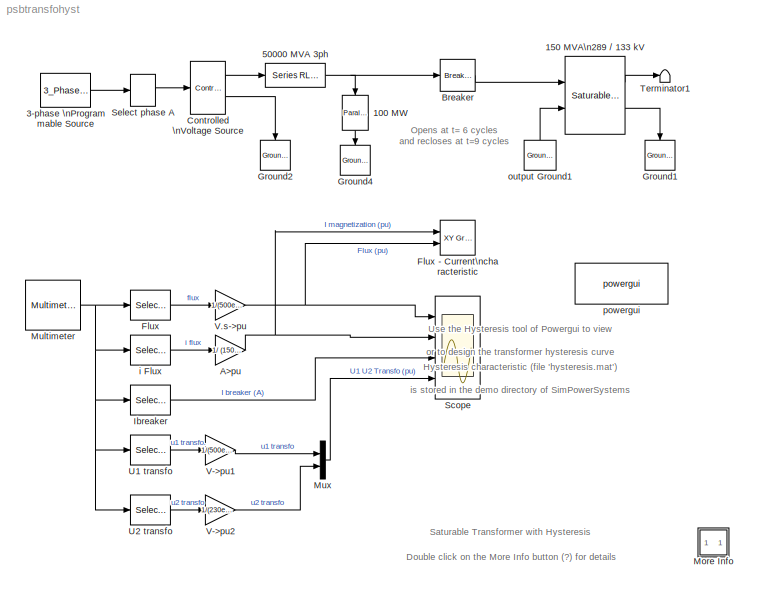
MODEL psbtransfohyst
KIND model
BLOCK [Reference] 100 MW  REF=powerlib2/Elements/Parallel RLC Load
  PSBOutputType = 1
  Ports = [1, 1]
  SourceBlock = powerlib2/Elements/Parallel RLC Load
  SourceType = Parallel RLC Load
  Tag = PoWeRsYsTeMbLoCk
  a = 500e3/sqrt(3)
  b = 60
  c = 100e6
  d = 0
  e = 0
  mesure = None
BLOCK [Reference] 150 MVA\n289 // 133 kV  REF=powerlib2/Elements/Saturable Transformer
  H = on
  Initialslope = +1
  PSBOutputType = 1111
  Ports = [2, 2]
  SourceBlock = powerlib2/Elements/Saturable Transformer
  SourceType = Saturable Transformer
  Tag = PoWeRsYsTeMbLoCk
  a = [ 150e6 60 ]
  b = [ 500e3/sqrt(3) 0.002 0.08 ]
  c = [ 230e3/sqrt(3) 0.002 0.08]
  d = [ 230e3/sqrt(3) 0.002 0.08]
  e = [0 0;  0.0 1.1; 1.0  1.5]
  f = [200 0]
  matfile = 'hysteresis'
  mesure = All measurements (V I Flux)
  w3check = off
BLOCK [Reference] 3-phase \nProgrammable Source  REF=powerlib_modelsV2/Continuous/3_Phase_Prog_Source
  HarmonicGeneration = off
  Par_HarmoA_pu = [3 0.2 -25 0]
  Par_HarmoB_pu = [2 0.15 35 2]
  Par_Timing_Harmo = [0.05  1]
  Par_Timing_Variation = [0.05 1]
  Par_Vps_LLrms = [500e3*0.8 90 60]
  Ports = [0, 1]
  SinglePhase = off
  SourceBlock = powerlib_modelsV2/Continuous/3_Phase_Prog_Source
  SourceType = 3-phase Programmable Source
  VariationEntity = Amplitude
  VariationFreq = 1
  VariationMag = 60
  VariationRate = 2
  VariationStep = 0.3
  VariationType = Step
  Xtime = [0 0.1 0.15 0.2]
  Yampli = [1 0.8 1.2 1.0]
BLOCK [Reference] 50000 MVA 3ph  REF=powerlib2/Elements/Series RLC Branch
  PSBOutputType = 1
  Ports = [1, 1]
  SourceBlock = powerlib2/Elements/Series RLC Branch
  SourceType = Series RLC Branch
  Tag = PoWeRsYsTeMbLoCk
  a = 500e3^2/5000e6/10
  b = 500e3^2/5000e6/(2*pi*60)
  c = inf
  mesure = Branch current
BLOCK [Gain] A>pu
  Gain = 1/ (150e6/(500e3/sqrt(3))*sqrt(2))
BLOCK [Reference] Breaker  REF=powerlib2/Elements/Breaker
  PSBOutputType = 1
  Ports = [1, 1]
  SourceBlock = powerlib2/Elements/Breaker
  SourceType = Breaker
  Tag = PoWeRsYsTeMbLoCk
  Ts = 0
  a = 0.01
  c = 1
  comext = off
  cs = inf
  mesure = None
  rs = 1e7
  times = [ 6/60  9/60]
BLOCK [Reference] Controlled \nVoltage Source  REF=powerlib2/Electrical\nSources/Controlled Voltage Source
  Description = source block
  PSBOutputType = 11
  Ports = [1, 2]
  SourceBlock = powerlib2/Electrical\nSources/Controlled Voltage Source
  SourceType = Controlled Voltage Source
  Tag = PoWeRsYsTeMbLoCk
  ifreq = 0
  initsrc = on
  iph = 0
  iv = 100
  mesure = None
  srctyp = AC
BLOCK [Selector] Flux
  InputPortWidth = 5
  Ports = [1, 1]
BLOCK [Reference] Flux - Current\ncharacteristic  REF=simulink/Sinks/XY Graph
  Ports = [2]
  SourceBlock = simulink/Sinks/XY Graph
  SourceType = XY scope.
  st = -1
  xmax = 0.05
  xmin = -0.05
  ymax = 1.5
  ymin = -1.5
BLOCK [Reference] Ground1  REF=powerlib2/Connectors/Ground (input)
  Ports = [1]
  SourceBlock = powerlib2/Connectors/Ground (input)
  SourceType = Ground
  Tag = PoWeRsYsTeMbLoCk
BLOCK [Reference] Ground2  REF=powerlib2/Connectors/Ground (input)
  Ports = [1]
  SourceBlock = powerlib2/Connectors/Ground (input)
  SourceType = Ground
  Tag = PoWeRsYsTeMbLoCk
BLOCK [Reference] Ground4  REF=powerlib2/Connectors/Ground (input)
  Ports = [1]
  SourceBlock = powerlib2/Connectors/Ground (input)
  SourceType = Ground
  Tag = PoWeRsYsTeMbLoCk
BLOCK [Selector] Ibreaker
  Elements = 3
  InputPortWidth = 5
  Ports = [1, 1]
BLOCK [SubSystem] More Info
  MaskDisplay = disp('?')
  MaskIconFrame = on
  MaskIconOpaque = on
  MaskIconRotate = none
  MaskIconUnits = autoscale
  MinAlgLoopOccurrences = off
  Ports = []
  RTWSystemCode = Auto
  TreatAsAtomicUnit = off
BLOCK [Reference] Multimeter  REF=powerlib2/Measurements/Multimeter
  AxesSetting = [0,0.1,-100,100]
  Display = 0
  Gain = [1 1 1 1 1]
  L = 8
  OutputType = Magnitude
  PSBOutputType = 1
  PSBequivalent = 1
  PhasorSimulation = off
  Ports = [0, 1]
  SavedBlockNames = -11
  SourceBlock = powerlib2/Measurements/Multimeter
  SourceType = MultimeterPSB
  Tag = PoWeRsYsTeMmEaSuReMeNt
  sel = [8 7 4 1 2]
  yselected = {'Flux: 150 MVA 289 // 133 kV','Imag: 150 MVA 289 // 133 kV','Iw1: 150 MVA 289 // 133 kV','Uw1: 150 MVA 289 // 133 kV','Uw2: 150 MVA 289 // 133 kV'};
BLOCK [Mux] Mux
  DisplayOption = bar
  Inputs = 2
  Ports = [2, 1]
BLOCK [Scope] Scope
  DataFormat = Array
  DeleteFcn = simscope BlockIsBeingDestroyed
  LimitDataPoints = off
  NumInputPorts = 4
  Ports = [4]
  PostSaveFcn = simscope Save
  SaveName = ScopeData1
  TimeRange = 0.2
  YMax = 2~0.0271003~2000~2
  YMin = -2~-0.0238367~-1000~-2
  ZoomMode = yonly
BLOCK [Selector] Select phase A
  InputPortWidth = 3
  Ports = [1, 1]
BLOCK [Terminator] Terminator1
BLOCK [Selector] U1 transfo
  Elements = 4
  InputPortWidth = 5
  Ports = [1, 1]
BLOCK [Selector] U2 transfo
  Elements = 5
  InputPortWidth = 5
  Ports = [1, 1]
BLOCK [Gain] V->pu1
  Gain = 1/(500e3/sqrt(3)*sqrt(2))
BLOCK [Gain] V->pu2
  Gain = 1/(230e3/sqrt(3)*sqrt(2))
BLOCK [Gain] V.s->pu
  Gain = 1/(500e3/sqrt(3)*sqrt(2)/(2*pi*60))
BLOCK [Selector] i Flux
  Elements = 2
  InputPortWidth = 5
  Ports = [1, 1]
BLOCK [Reference] output Ground1  REF=powerlib2/Connectors/Ground (output)
  PSBOutputType = 1
  Ports = [0, 1]
  SourceBlock = powerlib2/Connectors/Ground (output)
  SourceType = Ground
  Tag = PoWeRsYsTeMbLoCk
BLOCK [Reference] powergui  REF=powerlib2/powergui
  DisplayStyle = off
  Frange = [0:2:500]
  FreqAxis = off
  MaxFrequency = 1000
  Ports = []
  RmsSteady = 1
  SourceBlock = powerlib2/powergui
  SourceType = PSB option menu block
  StartTime = 0.0
  Ts = 35e-6
  Xlog = on
  Ylog = off
  ZoomFFT = on
  cycles = 1
  display = off
  echomessages = off
  frequency = 60
  frequencyindice = 1
  frequencyindicesteady = 1
  fundamental = 60
  methode = off
  save = off
  variable = ZData
ANNOTATION (root): Double click on the More Info button (?) for details
ANNOTATION (root): Hysteresis characteristic (file 'hysteresis.mat') \nis stored in the demo directory of SimPowerSystems
ANNOTATION (root): Opens at t= 6 cycles\nand recloses at t=9 cycles\n
ANNOTATION (root): Saturable Transformer with Hysteresis
ANNOTATION (root): Use the Hysteresis tool of Powergui to view\nor to design the transformer hysteresis curve
ANNOTATION More Info: 1) Simulation of saturation with hysteresis
ANNOTATION More Info: 2) Simulation of saturation with a piecewise nonlinear characteristic
ANNOTATION More Info: At first zero crossing after the breaker opening order, current is interrupted and a flux of 0.83 pu stays trapped in the transformer core.
ANNOTATION More Info: Circuit Description
ANNOTATION More Info: Demonstration
ANNOTATION More Info: From 0 to 0.05 sec. :
ANNOTATION More Info: From 0.05 sec. to 0.1 sec. :
ANNOTATION More Info: From 0.1 sec. to 0.15 sec. :
ANNOTATION More Info: From 0.15 sec. to 0.2 sec. :
ANNOTATION More Info: One phase of a three-phase transformer is connected on a 500 kV network. The transformer is rated 500 kV/230 kV, 450 MVA (150 MVA per phase).\nThe flux-current saturation characteristic of the transformer is modelled with the hysteresis or with a simple piecewise nonlinear characteristic.\n\nA programmable source is used to vary the internal voltage of the equivalent 500 kV network.\nDuring the fi...<+848ch>
ANNOTATION More Info: Open the transformer menu and check that 'Simulate hysteresis' has been checked.\nUsing the 'Hysteresis design' tool of the powergui, load the hysteresis characteristic (load file 'hysteresis.mat').\nNotice that flux and excitation current are displayed in pu. Using the 'Parameter units' popu menu, you can convert the pu units to SI units.\nThe saturation characteristics consists of two regions:\n...<+740ch>
ANNOTATION More Info: Open the transformer menu and deselect 'Simulate hysteresis'. The saturation will now be simulated by a piecewise nonlinear single-valued characteristic\ndefined by 7 points. Current/Flux pairs (in pu) are: [0 0; 0.0 0.85; 0.015 1.2; 0.03 1.35; 0.06 1.5; 0.09 1.56; 0.12 1.572].\nThe saturated region is the same, but the hysteresis loop is not simulated. Note that this single valued characteristics...<+135ch>
ANNOTATION More Info: S. Casoria (Hydro-Quebec) and P. Brunelle (TransEnergie)
ANNOTATION More Info: The breaker is reclosed at t = 9 cycles, at a zero crossing of source voltage, producing an additional flux offset of approximatlely 1 pu.\nThe peak flux now reaches 1.85 pu, driving the transformer into the saturated region. Peak excitation current is 0.8 pu.
ANNOTATION More Info: This demonstration illustrates simulation of hystersis in a saturable transformer
ANNOTATION More Info: Voltage and flux peak values are at 0.8 pu. Notice typical square wave of magnetization current. \nAs no remanent flux was specified, magnetization current and flux are symetrical. Flux travels on inner loops (inside the main loop).
ANNOTATION More Info: Voltage is 1.1 pu. Flux now reaches 1.1 pu and it travels on the main loop.\nCurrent pulses appear on the magnetization current (2nd trace, I flux), indicating begining of saturation.
LINE 100 MW:1 -> Ground4:1
LINE 150 MVA\n289 // 133 kV:1 -> Terminator1:1
LINE 150 MVA\n289 // 133 kV:2 -> Ground1:1
LINE 3-phase \nProgrammable Source:1 -> Select phase A:1
NET 50000 MVA 3ph:1 -> 100 MW:1, Breaker:1
NET A>pu:1 -> Flux - Current\ncharacteristic:1, Scope:2
LINE Breaker:1 -> 150 MVA\n289 // 133 kV:1
LINE Controlled \nVoltage Source:1 -> 50000 MVA 3ph:1
LINE Controlled \nVoltage Source:2 -> Ground2:1
LINE Flux:1 -> V.s->pu:1
LINE Ibreaker:1 -> Scope:3
NET Multimeter:1 -> Flux:1, Ibreaker:1, U1 transfo:1, U2 transfo:1, i Flux:1
LINE Mux:1 -> Scope:4
LINE Select phase A:1 -> Controlled \nVoltage Source:1
LINE U1 transfo:1 -> V->pu1:1
LINE U2 transfo:1 -> V->pu2:1
LINE V->pu1:1 -> Mux:1
LINE V->pu2:1 -> Mux:2
NET V.s->pu:1 -> Flux - Current\ncharacteristic:2, Scope:1
LINE i Flux:1 -> A>pu:1
LINE output Ground1:1 -> 150 MVA\n289 // 133 kV:2
note: NET lines group one-source signal fan-out (src -> all destinations, sorted); 1:1 wires keep LINE
